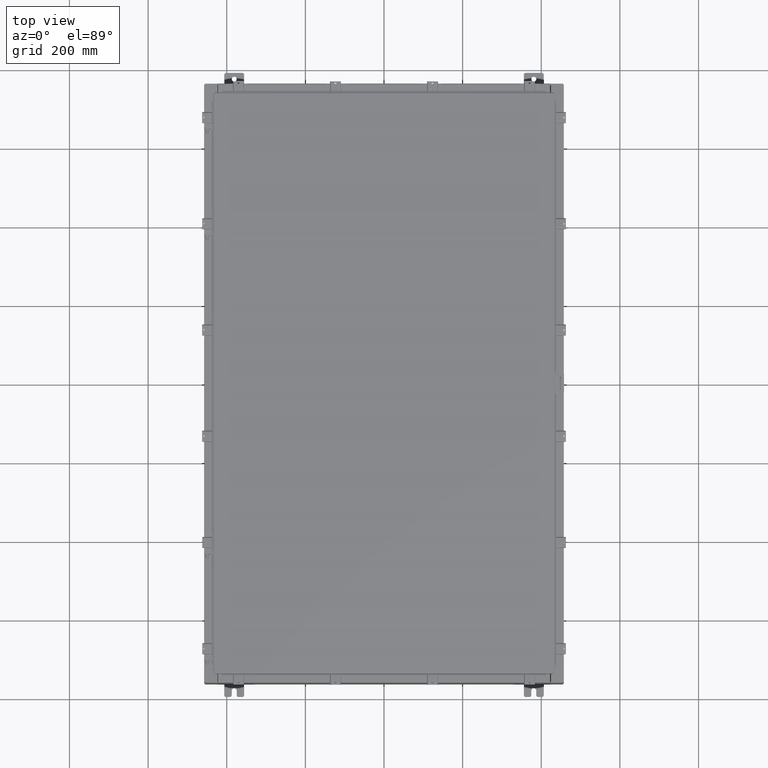
[diagram: clean part render]
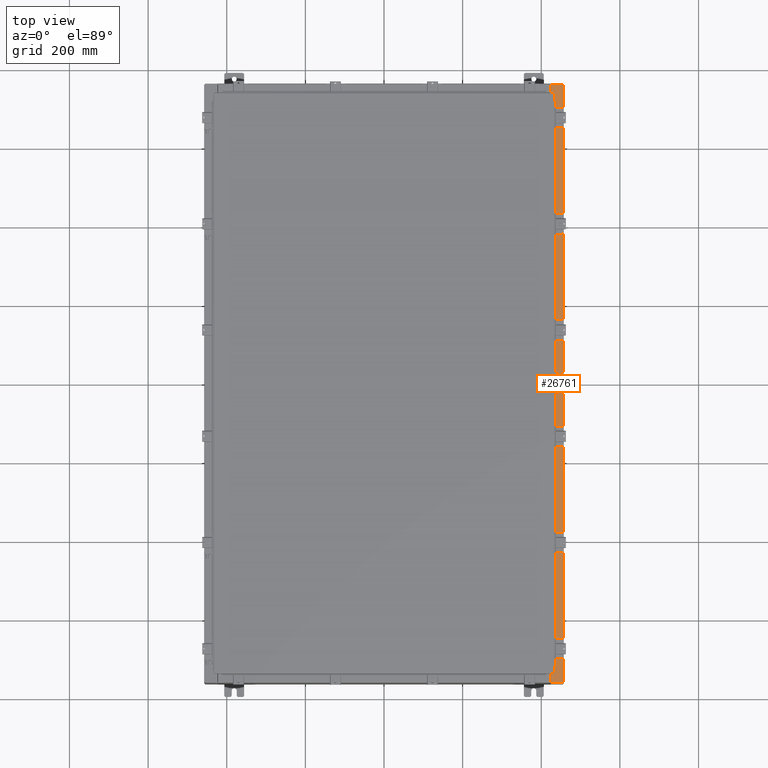
[diagram: same view with one face highlighted and labeled with its STEP entity id]
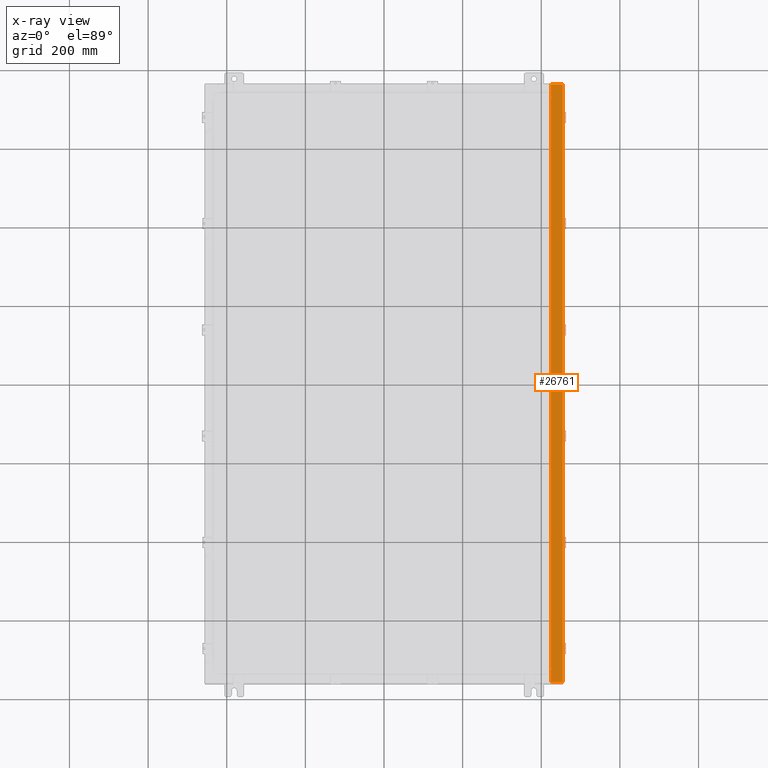
[diagram: x-ray of the same camera — body ghosted, the highlighted face saturated]
A machine part, top view. The second image highlights one B-rep face of the part: STEP entity #26761.
The next image is the same camera in x-ray: the body ghosted, the highlighted face saturated — about 0% of this face is hidden behind the body in this view.
In plain terms, the highlighted planar face has unit normal (-0, -0, -1).
Its self-contained STEP definition (entity closure, byte-faithful):
#611 = CARTESIAN_POINT ( 'NONE',  ( 16.75005000000003400, 28.61242499999999500, 9.925300000000007100 ) ) ;
#795 = ORIENTED_EDGE ( 'NONE', *, *, #15779, .T. ) ;
#942 = LINE ( 'NONE', #11408, #27265 ) ;
#1094 = DIRECTION ( 'NONE',  ( -1.000000000000000000, 0.0000000000000000000, 5.349571789159788500E-015 ) ) ;
#1121 = ORIENTED_EDGE ( 'NONE', *, *, #26336, .F. ) ;
#1577 = CARTESIAN_POINT ( 'NONE',  ( 16.75005000000003400, 28.63109999999999600, 9.925300000000007100 ) ) ;
#1588 = EDGE_CURVE ( 'NONE', #8867, #6091, #26614, .T. ) ;
#2012 = CARTESIAN_POINT ( 'NONE',  ( 5.335691853495975500E-014, -29.92530000000001100, 9.925300000000099500 ) ) ;
#2103 = AXIS2_PLACEMENT_3D ( 'NONE', #11687, #13826, #1094 ) ;
#2496 = ORIENTED_EDGE ( 'NONE', *, *, #22307, .F. ) ;
#2770 = DIRECTION ( 'NONE',  ( 1.000000000000000000, 0.0000000000000000000, 0.0000000000000000000 ) ) ;
#2883 = VECTOR ( 'NONE', #18994, 39.37007874015748100 ) ;
#3154 = PLANE ( 'NONE',  #2103 ) ;
#3298 = CARTESIAN_POINT ( 'NONE',  ( 16.69970000000003600, -29.92530000000001100, 9.925300000000008900 ) ) ;
#3952 = VERTEX_POINT ( 'NONE', #17111 ) ;
#4967 = LINE ( 'NONE', #19502, #21283 ) ;
#6084 = ORIENTED_EDGE ( 'NONE', *, *, #26809, .T. ) ;
#6091 = VERTEX_POINT ( 'NONE', #11585 ) ;
#6458 = LINE ( 'NONE', #14559, #17106 ) ;
#6545 = CARTESIAN_POINT ( 'NONE',  ( 16.69970000000003600, -28.63110000000000700, 9.925300000000007100 ) ) ;
#6558 = CARTESIAN_POINT ( 'NONE',  ( 16.75005000000003400, -28.59375000000001100, 9.925300000000007100 ) ) ;
#6618 = CIRCLE ( 'NONE', #22871, 0.01867499999999949400 ) ;
#7118 = CARTESIAN_POINT ( 'NONE',  ( 16.75005000000003400, -28.59375000000001100, 9.925300000000007100 ) ) ;
#7195 = VECTOR ( 'NONE', #14005, 39.37007874015748100 ) ;
#7820 = EDGE_CURVE ( 'NONE', #12561, #10984, #24466, .T. ) ;
#8102 = CARTESIAN_POINT ( 'NONE',  ( 17.91230000000003400, 29.92529999999999300, 9.925300000000000000 ) ) ;
#8139 = DIRECTION ( 'NONE',  ( 1.000000000000000000, 0.0000000000000000000, 0.0000000000000000000 ) ) ;
#8413 = DIRECTION ( 'NONE',  ( 5.349571789159788500E-015, 3.651556366905946600E-017, 1.000000000000000000 ) ) ;
#8867 = VERTEX_POINT ( 'NONE', #13872 ) ;
#9116 = VECTOR ( 'NONE', #18180, 39.37007874015748100 ) ;
#9331 = VERTEX_POINT ( 'NONE', #14054 ) ;
#9358 = CARTESIAN_POINT ( 'NONE',  ( 16.75005000000003400, -28.61242500000000900, 9.925300000000007100 ) ) ;
#9478 = DIRECTION ( 'NONE',  ( 0.0000000000000000000, -1.000000000000000000, 3.651556366905946600E-017 ) ) ;
#9726 = AXIS2_PLACEMENT_3D ( 'NONE', #9358, #8413, #8139 ) ;
#10025 = VERTEX_POINT ( 'NONE', #8102 ) ;
#10513 = CARTESIAN_POINT ( 'NONE',  ( 16.75005000000003400, 28.59374999999999600, 9.925300000000007100 ) ) ;
#10984 = VERTEX_POINT ( 'NONE', #7118 ) ;
#11152 = CARTESIAN_POINT ( 'NONE',  ( 16.71270000000003700, 28.59374999999999600, 9.925300000000007100 ) ) ;
#11268 = CARTESIAN_POINT ( 'NONE',  ( 16.69970000000003600, -28.63110000000000700, 9.925300000000007100 ) ) ;
#11408 = CARTESIAN_POINT ( 'NONE',  ( 16.71270000000003700, 28.59374999999999600, 9.925300000000007100 ) ) ;
#11585 = CARTESIAN_POINT ( 'NONE',  ( 16.69970000000003600, 28.63109999999998900, 9.925300000000007100 ) ) ;
#11687 = CARTESIAN_POINT ( 'NONE',  ( 5.335691853495974900E-014, 3.624279240845194600E-016, 9.925300000000095900 ) ) ;
#11783 = CARTESIAN_POINT ( 'NONE',  ( 5.335691853495974200E-014, 29.92529999999999300, 9.925300000000095900 ) ) ;
#12294 = EDGE_CURVE ( 'NONE', #21990, #19707, #4967, .T. ) ;
#12561 = VERTEX_POINT ( 'NONE', #14188 ) ;
#12596 = VERTEX_POINT ( 'NONE', #1577 ) ;
#12705 = VERTEX_POINT ( 'NONE', #10513 ) ;
#12950 = LINE ( 'NONE', #17440, #17951 ) ;
#13036 = VECTOR ( 'NONE', #19310, 39.37007874015748100 ) ;
#13163 = DIRECTION ( 'NONE',  ( -3.651556366905947300E-017, -1.000000000000000000, 3.651556366905966400E-017 ) ) ;
#13632 = LINE ( 'NONE', #6545, #18598 ) ;
#13657 = ORIENTED_EDGE ( 'NONE', *, *, #1588, .T. ) ;
#13826 = DIRECTION ( 'NONE',  ( -5.349571789159788500E-015, -3.651556366905946600E-017, -1.000000000000000000 ) ) ;
#13872 = CARTESIAN_POINT ( 'NONE',  ( 16.69970000000003600, 29.92529999999999300, 9.925300000000007100 ) ) ;
#14005 = DIRECTION ( 'NONE',  ( -0.0000000000000000000, 1.000000000000000000, -0.0000000000000000000 ) ) ;
#14054 = CARTESIAN_POINT ( 'NONE',  ( 17.91230000000003400, -29.92530000000001100, 9.925300000000001800 ) ) ;
#14188 = CARTESIAN_POINT ( 'NONE',  ( 16.75005000000003400, -28.63110000000000700, 9.925300000000007100 ) ) ;
#14559 = CARTESIAN_POINT ( 'NONE',  ( 16.75005000000003400, 28.63109999999999600, 9.925300000000007100 ) ) ;
#14814 = LINE ( 'NONE', #2012, #2883 ) ;
#15102 = DIRECTION ( 'NONE',  ( 1.000000000000000000, 0.0000000000000000000, 0.0000000000000000000 ) ) ;
#15454 = DIRECTION ( 'NONE',  ( 5.349571789159788500E-015, 3.651556366905946600E-017, 1.000000000000000000 ) ) ;
#15779 = EDGE_CURVE ( 'NONE', #19707, #9331, #14814, .T. ) ;
#17106 = VECTOR ( 'NONE', #27369, 39.37007874015748100 ) ;
#17111 = CARTESIAN_POINT ( 'NONE',  ( 16.71270000000003700, -28.59375000000001100, 9.925300000000007100 ) ) ;
#17440 = CARTESIAN_POINT ( 'NONE',  ( 17.91230000000003400, -29.92530000000001100, 9.925300000000001800 ) ) ;
#17473 = DIRECTION ( 'NONE',  ( 0.0000000000000000000, -1.000000000000000000, 3.651556366905946600E-017 ) ) ;
#17744 = ORIENTED_EDGE ( 'NONE', *, *, #24596, .F. ) ;
#17951 = VECTOR ( 'NONE', #13163, 39.37007874015748100 ) ;
#18180 = DIRECTION ( 'NONE',  ( -1.000000000000000000, 2.430865342914509000E-063, 5.349571789159789300E-015 ) ) ;
#18523 = LINE ( 'NONE', #24631, #7195 ) ;
#18598 = VECTOR ( 'NONE', #15102, 39.37007874015748100 ) ;
#18690 = LINE ( 'NONE', #6558, #13036 ) ;
#18994 = DIRECTION ( 'NONE',  ( 1.000000000000000000, -2.430865342914509000E-063, -5.349571789159789300E-015 ) ) ;
#19135 = EDGE_LOOP ( 'NONE', ( #2496, #20267, #795, #20033, #6084, #13657, #1121, #24356, #17744, #20984, #21764, #26914 ) ) ;
#19310 = DIRECTION ( 'NONE',  ( -1.000000000000000000, 0.0000000000000000000, 0.0000000000000000000 ) ) ;
#19502 = CARTESIAN_POINT ( 'NONE',  ( 16.69970000000003600, 3.624279240845161500E-016, 9.925300000000007100 ) ) ;
#19707 = VERTEX_POINT ( 'NONE', #3298 ) ;
#20033 = ORIENTED_EDGE ( 'NONE', *, *, #22411, .F. ) ;
#20228 = VECTOR ( 'NONE', #9478, 39.37007874015748100 ) ;
#20267 = ORIENTED_EDGE ( 'NONE', *, *, #12294, .T. ) ;
#20591 = EDGE_CURVE ( 'NONE', #10984, #3952, #18690, .T. ) ;
#20984 = ORIENTED_EDGE ( 'NONE', *, *, #24121, .F. ) ;
#21099 = LINE ( 'NONE', #11783, #9116 ) ;
#21283 = VECTOR ( 'NONE', #17473, 39.37007874015748100 ) ;
#21764 = ORIENTED_EDGE ( 'NONE', *, *, #20591, .F. ) ;
#21990 = VERTEX_POINT ( 'NONE', #11268 ) ;
#22307 = EDGE_CURVE ( 'NONE', #21990, #12561, #13632, .T. ) ;
#22411 = EDGE_CURVE ( 'NONE', #10025, #9331, #12950, .T. ) ;
#22442 = CARTESIAN_POINT ( 'NONE',  ( 16.69970000000003600, 3.624279240845161500E-016, 9.925300000000007100 ) ) ;
#22454 = EDGE_CURVE ( 'NONE', #12705, #12596, #6618, .T. ) ;
#22871 = AXIS2_PLACEMENT_3D ( 'NONE', #611, #15454, #2770 ) ;
#24071 = DIRECTION ( 'NONE',  ( 1.000000000000000000, 0.0000000000000000000, 0.0000000000000000000 ) ) ;
#24121 = EDGE_CURVE ( 'NONE', #3952, #26649, #18523, .T. ) ;
#24356 = ORIENTED_EDGE ( 'NONE', *, *, #22454, .F. ) ;
#24466 = CIRCLE ( 'NONE', #9726, 0.01867499999999949400 ) ;
#24596 = EDGE_CURVE ( 'NONE', #26649, #12705, #942, .T. ) ;
#24631 = CARTESIAN_POINT ( 'NONE',  ( 16.71270000000003700, -28.59375000000001400, 9.925300000000007100 ) ) ;
#26127 = FACE_OUTER_BOUND ( 'NONE', #19135, .T. ) ;
#26336 = EDGE_CURVE ( 'NONE', #12596, #6091, #6458, .T. ) ;
#26614 = LINE ( 'NONE', #22442, #20228 ) ;
#26649 = VERTEX_POINT ( 'NONE', #11152 ) ;
#26761 = ADVANCED_FACE ( 'NONE', ( #26127 ), #3154, .F. ) ;
#26809 = EDGE_CURVE ( 'NONE', #10025, #8867, #21099, .T. ) ;
#26914 = ORIENTED_EDGE ( 'NONE', *, *, #7820, .F. ) ;
#27265 = VECTOR ( 'NONE', #24071, 39.37007874015748100 ) ;
#27369 = DIRECTION ( 'NONE',  ( -1.000000000000000000, 8.681145560799821800E-014, 0.0000000000000000000 ) ) ;